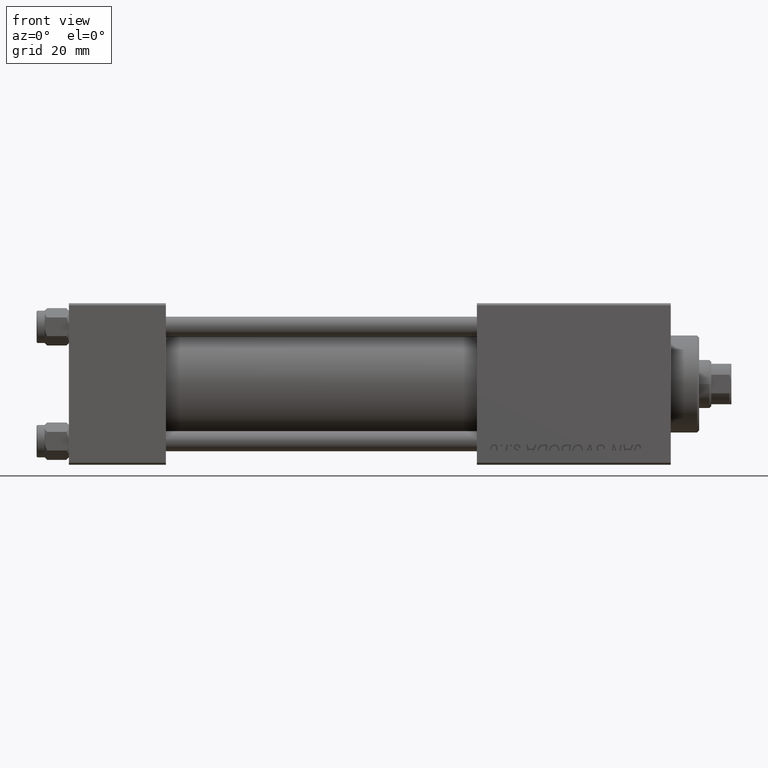
[diagram: clean part render]
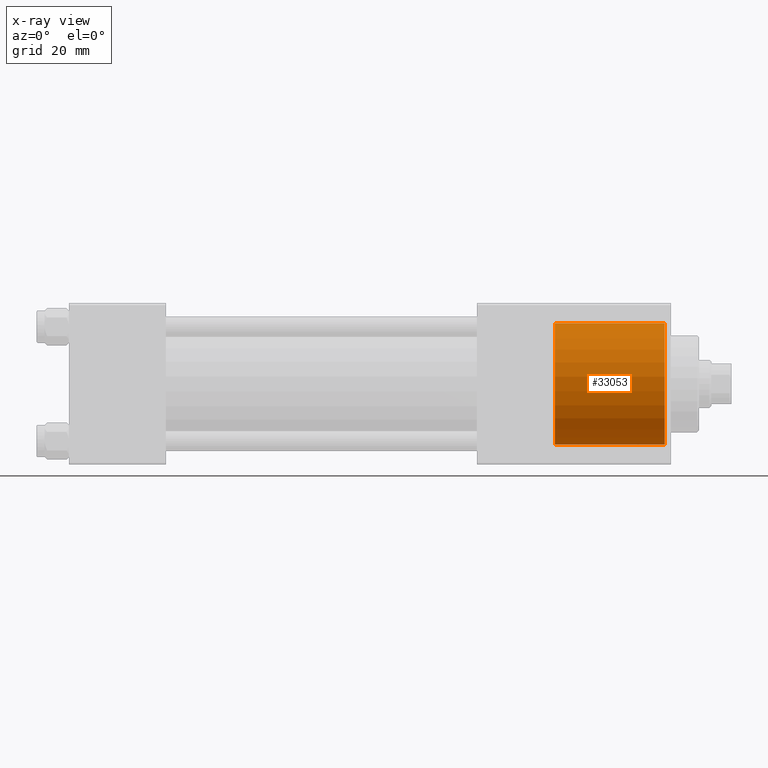
[diagram: x-ray — body ghosted, one internal face saturated and labeled with its STEP entity id]
A machine part, front view, then the same camera in x-ray: the body is ghosted and one INTERNAL B-rep face — a face not visible from any outside direction — is saturated and labeled: STEP entity #33053.
In plain terms, the highlighted cylindrical surface (partial cylindrical patch) has radius 15 mm, axis along (1, 0, 0).
Its self-contained STEP definition (entity closure, byte-faithful):
#914 = DIRECTION ( 'NONE',  ( 1.000000000000000000, 0.000000000000000000, 0.000000000000000000 ) ) ;
#2302 = VERTEX_POINT ( 'NONE', #42899 ) ;
#2373 = CARTESIAN_POINT ( 'NONE',  ( 120.3000000000000114, 0.000000000000000000, -15.00000000000000000 ) ) ;
#2703 = FACE_OUTER_BOUND ( 'NONE', #44395, .T. ) ;
#2777 = VECTOR ( 'NONE', #27075, 1000.000000000000000 ) ;
#3349 = DIRECTION ( 'NONE',  ( 1.000000000000000000, 0.000000000000000000, 0.000000000000000000 ) ) ;
#6351 = VERTEX_POINT ( 'NONE', #9487 ) ;
#6833 = ORIENTED_EDGE ( 'NONE', *, *, #44538, .F. ) ;
#8958 = CARTESIAN_POINT ( 'NONE',  ( 120.3000000000000114, 0.000000000000000000, -15.00000000000000000 ) ) ;
#9487 = CARTESIAN_POINT ( 'NONE',  ( 147.5000000000000284, 1.836970198721029589E-15, 15.00000000000000000 ) ) ;
#9806 = CARTESIAN_POINT ( 'NONE',  ( 120.3000000000000114, 0.000000000000000000, 0.000000000000000000 ) ) ;
#10247 = AXIS2_PLACEMENT_3D ( 'NONE', #41238, #3349, #49389 ) ;
#16722 = VERTEX_POINT ( 'NONE', #36902 ) ;
#17954 = CYLINDRICAL_SURFACE ( 'NONE', #27432, 15.00000000000000000 ) ;
#19096 = CIRCLE ( 'NONE', #48320, 15.00000000000000000 ) ;
#22281 = CARTESIAN_POINT ( 'NONE',  ( 120.3000000000000114, 1.836970198721029589E-15, 15.00000000000000000 ) ) ;
#24456 = DIRECTION ( 'NONE',  ( 1.000000000000000000, -0.000000000000000000, -0.000000000000000000 ) ) ;
#26087 = LINE ( 'NONE', #22281, #2777 ) ;
#27075 = DIRECTION ( 'NONE',  ( 1.000000000000000000, -0.000000000000000000, -0.000000000000000000 ) ) ;
#27339 = ORIENTED_EDGE ( 'NONE', *, *, #41963, .T. ) ;
#27432 = AXIS2_PLACEMENT_3D ( 'NONE', #9806, #29381, #29123 ) ;
#28082 = VECTOR ( 'NONE', #24456, 1000.000000000000000 ) ;
#29123 = DIRECTION ( 'NONE',  ( 0.000000000000000000, 0.000000000000000000, -1.000000000000000000 ) ) ;
#29381 = DIRECTION ( 'NONE',  ( 1.000000000000000000, -0.000000000000000000, -0.000000000000000000 ) ) ;
#30228 = DIRECTION ( 'NONE',  ( 0.000000000000000000, 0.000000000000000000, 1.000000000000000000 ) ) ;
#33053 = ADVANCED_FACE ( 'NONE', ( #2703 ), #17954, .F. ) ;
#34024 = ORIENTED_EDGE ( 'NONE', *, *, #39439, .T. ) ;
#34126 = ORIENTED_EDGE ( 'NONE', *, *, #44439, .F. ) ;
#36902 = CARTESIAN_POINT ( 'NONE',  ( 147.5000000000000284, 0.000000000000000000, -15.00000000000000000 ) ) ;
#39439 = EDGE_CURVE ( 'NONE', #2302, #6351, #26087, .T. ) ;
#41238 = CARTESIAN_POINT ( 'NONE',  ( 120.3000000000000114, 0.000000000000000000, 0.000000000000000000 ) ) ;
#41963 = EDGE_CURVE ( 'NONE', #6351, #16722, #19096, .T. ) ;
#42899 = CARTESIAN_POINT ( 'NONE',  ( 120.3000000000000114, 1.836970198721029589E-15, 15.00000000000000000 ) ) ;
#43788 = LINE ( 'NONE', #8958, #28082 ) ;
#44395 = EDGE_LOOP ( 'NONE', ( #6833, #34024, #27339, #34126 ) ) ;
#44439 = EDGE_CURVE ( 'NONE', #49870, #16722, #43788, .T. ) ;
#44538 = EDGE_CURVE ( 'NONE', #2302, #49870, #45955, .T. ) ;
#45955 = CIRCLE ( 'NONE', #10247, 15.00000000000000000 ) ;
#46944 = CARTESIAN_POINT ( 'NONE',  ( 147.5000000000000284, 0.000000000000000000, 0.000000000000000000 ) ) ;
#48320 = AXIS2_PLACEMENT_3D ( 'NONE', #46944, #914, #30228 ) ;
#49389 = DIRECTION ( 'NONE',  ( 0.000000000000000000, 0.000000000000000000, -1.000000000000000000 ) ) ;
#49870 = VERTEX_POINT ( 'NONE', #2373 ) ;